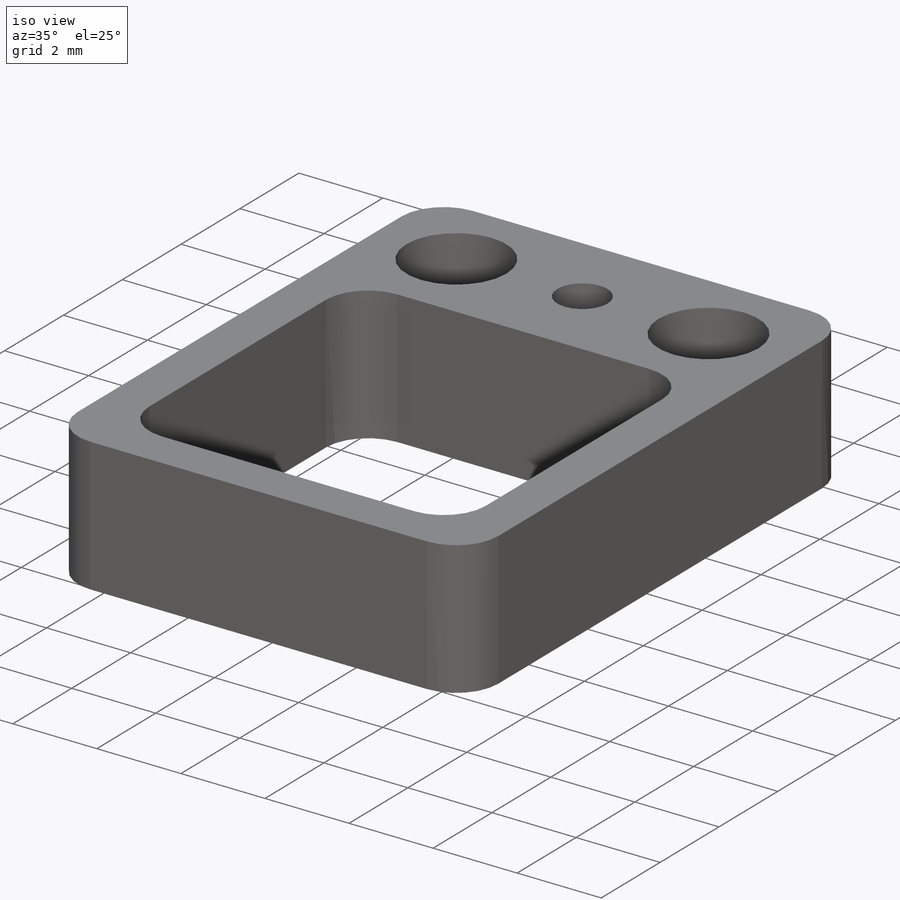
[diagram: iso view]
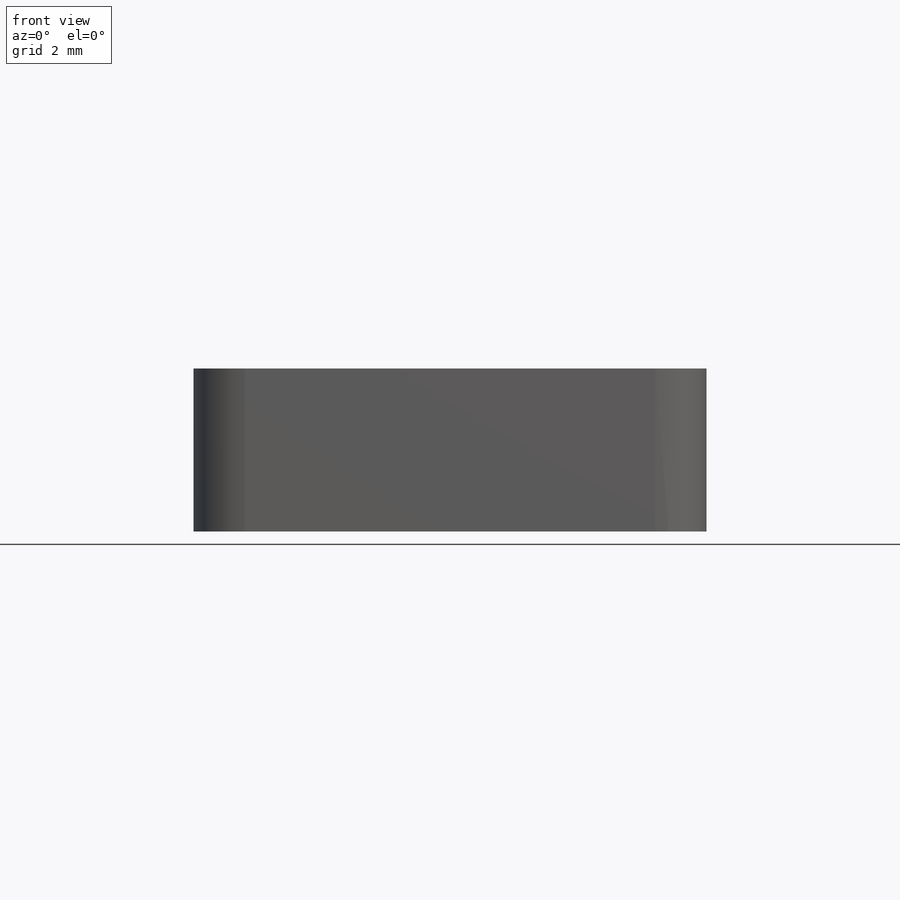
[diagram: front view]
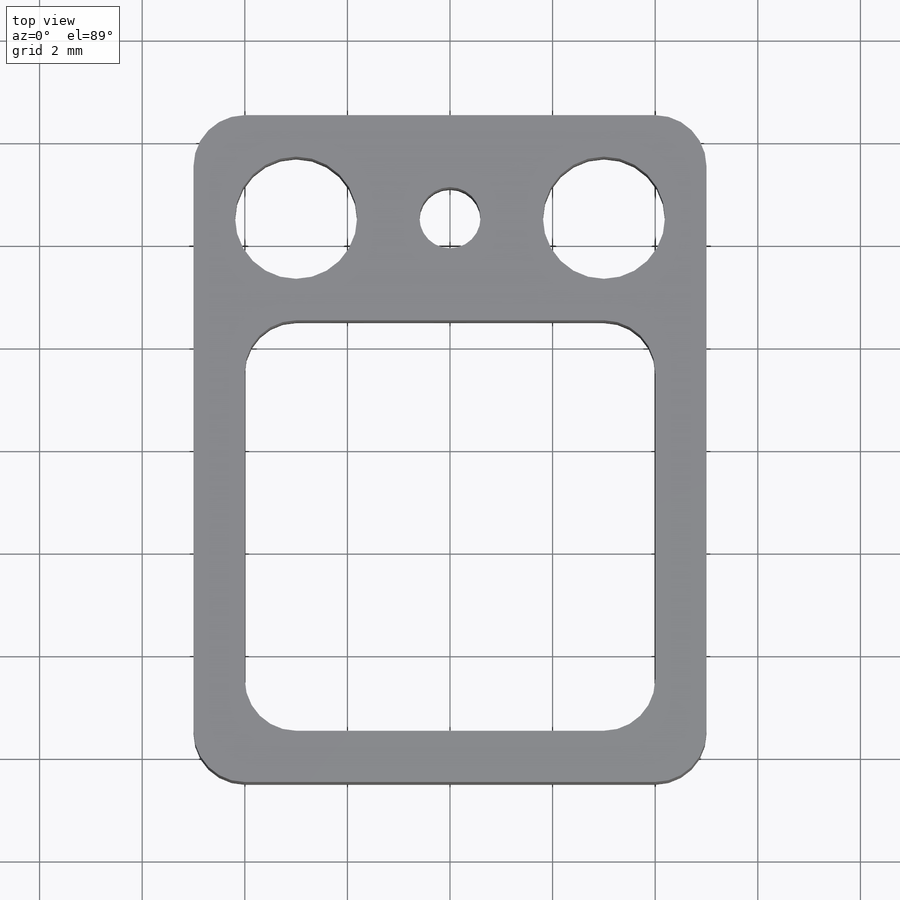
[diagram: top view]
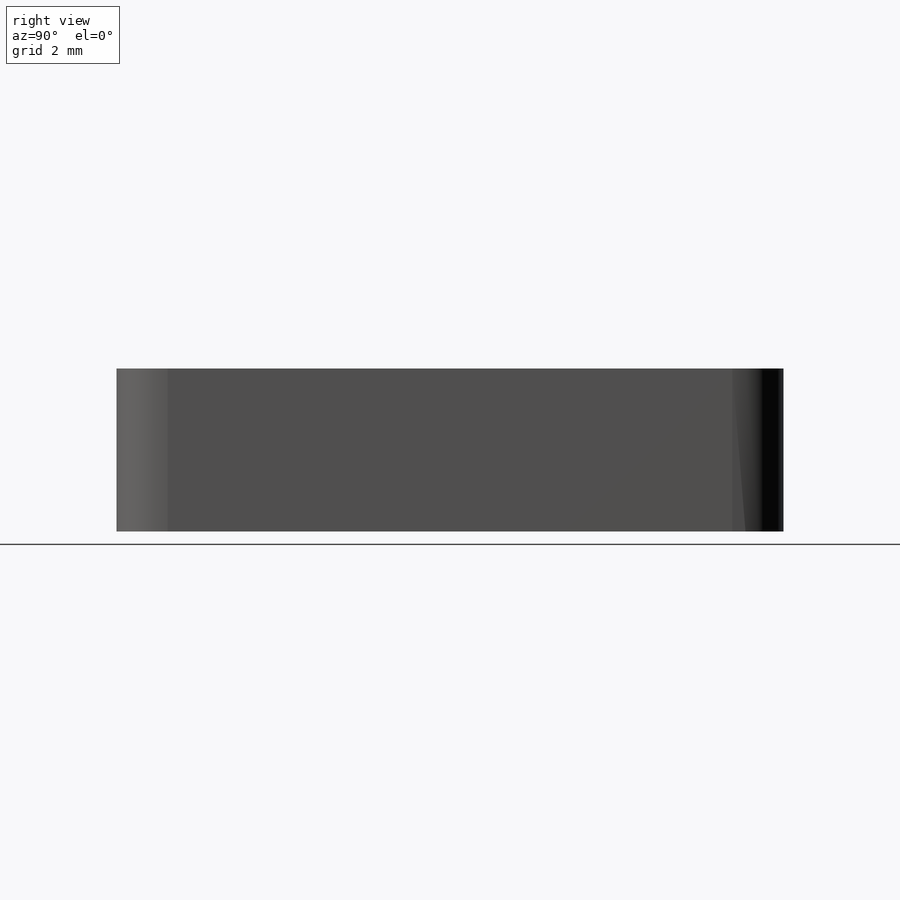
[diagram: right view]
SOLIDWORKS PART (.sldprt)
format: sldprt  version: not decoded by parser v0  size: 194,048 bytes
history: native  units: mm
features: sketch x6, hole x2, material x1, extrude x1, cut_extrude x1, fillet x1 (+16 scaffold rows collapsed)
feature tree (28):
  scaffold x16  (default folders/planes/origin — collapsed)
  material  "Material <not specified>"
  sketch  "Sketch1"  dims[D1=10.0mm D2=13.0mm]
  extrude  "Extrude1"  Depth=3.175mm
  sketch  "Sketch2"  dims[c1.D1=7.0mm c1.D2=7.0mm c2.D1=8.0mm c2.D2=8.0mm c2.D3=1.0mm c2.D4=1.0mm]
  cut_extrude  "Extrude2"  Depth=3.5mm
  hole  "#0-80 Tapped Hole1"  Diameter=1.19126mm Depth=4mm
  sketch  "3DSketch5"  dims[D1=2.0mm D2=5.0mm]
  sketch  "Sketch9"  dims[hole-wizard template sketch: 47 standard entries collapsed; hole parameters kept: c15.Tap Drill Depth=4.0mm c15.D3=~14.816244mm c15.Drill Angle=118.0deg]
  hole  "3/32 (0.09375) Diameter Hole1"  Diameter=2.38125mm Depth=10mm
  sketch  "3DSketch6"  dims[D1=2.0mm D2=2.0mm D3=2.0mm D4=2.0mm]
  sketch  "Sketch10"  dims[hole-wizard template sketch: 50 standard entries collapsed; hole parameters above]
  fillet  "Fillet7"  Radius=1mm
decode coverage: 11 of 11 modeling features carry decoded parameters
note: ~ marks probable driven/reference dimensions
note: suppression state not decoded; provenance and decode notes live in map.json
